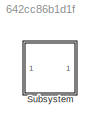
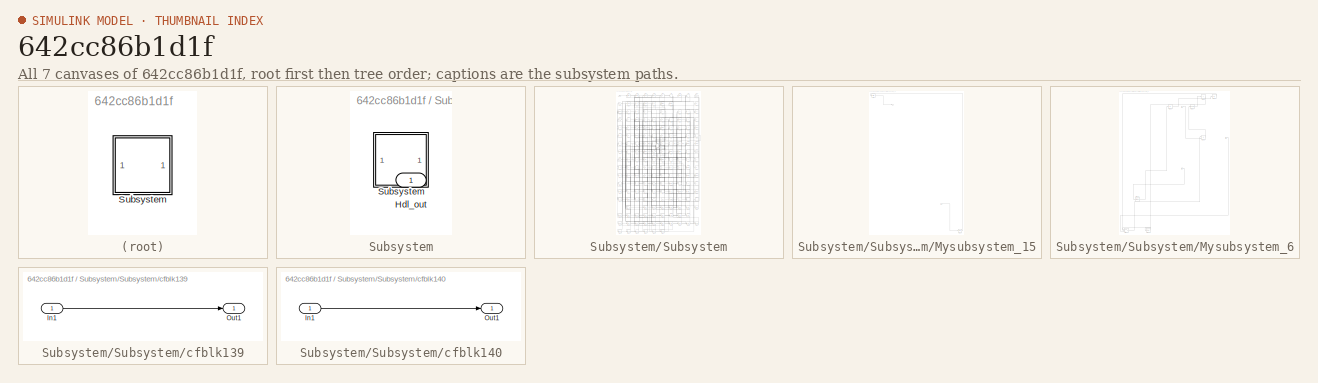
[diagram: thumbnail index - all 7 canvases of the model, root first then tree order]
MODEL slx_642cc86b1d1f
KIND model
CONFIG AbsTol = auto
CONFIG EnableMultiTasking = off
CONFIG FixedStep = auto
CONFIG MaxStep = auto
CONFIG MinStep = auto
CONFIG RelTol = 1e-3
CONFIG SampleTimeConstraint = Unconstrained
CONFIG SolverName = VariableStepAuto
CONFIG StartTime = 0.0
CONFIG StopTime = 10.0
BLOCK [SubSystem] Subsystem
BLOCK [Outport] Subsystem/Hdl_out
  OutDataTypeStr = uint8
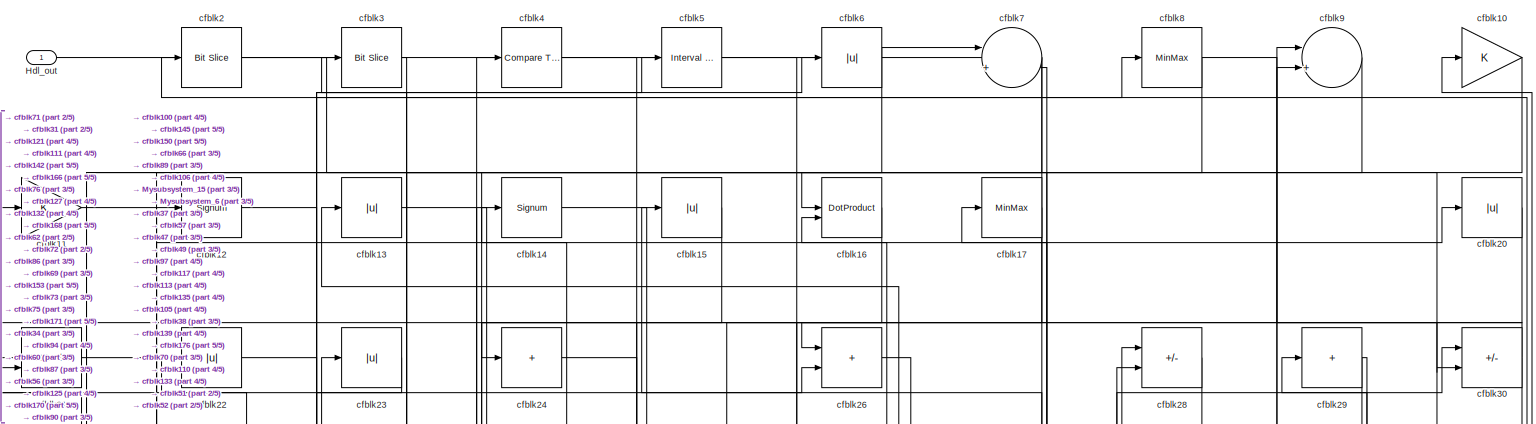
[diagram: Subsystem/Subsystem - part 1/5, full width, top band]
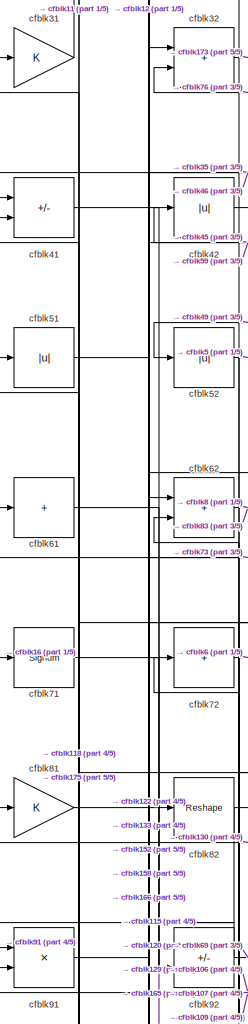
[diagram: Subsystem/Subsystem - part 2/5, middle left region]
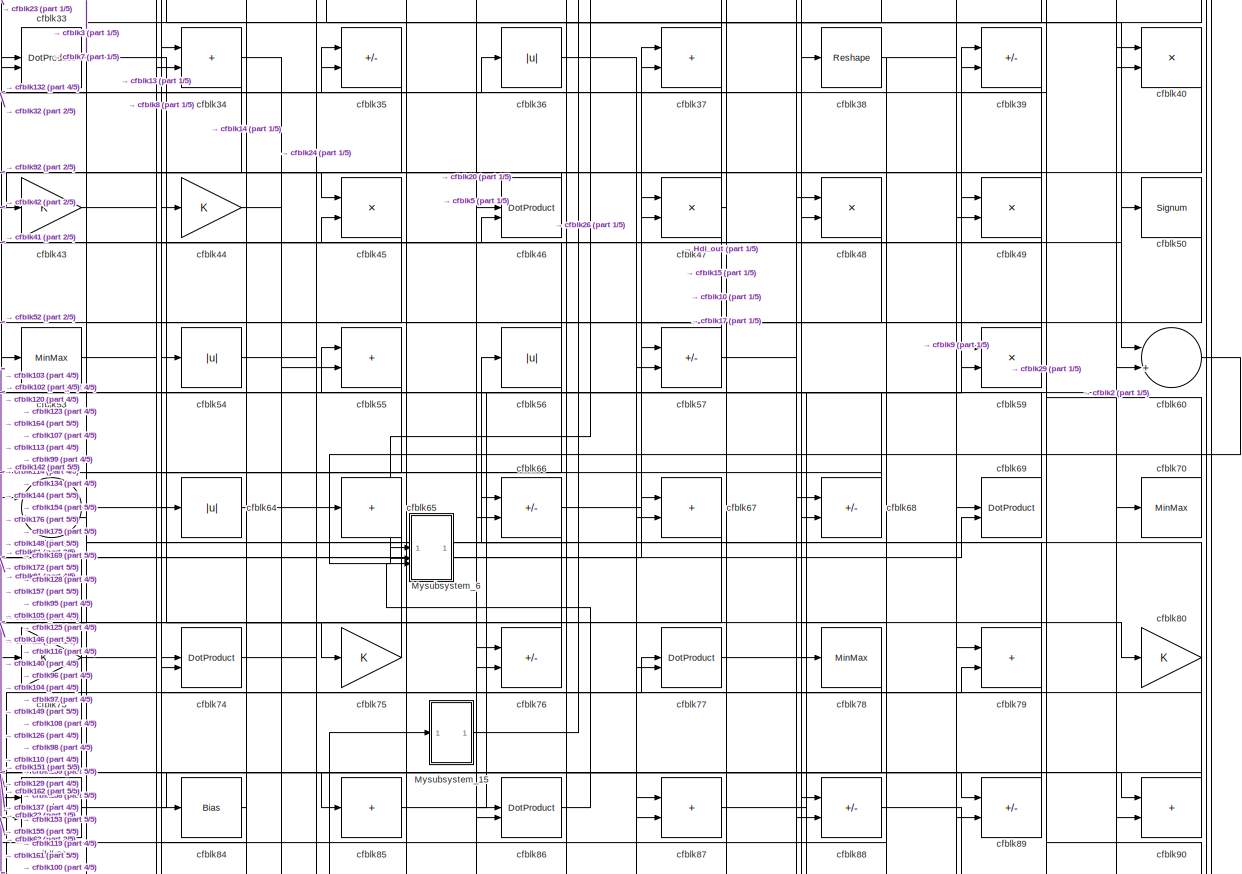
[diagram: Subsystem/Subsystem - part 3/5, full width, middle band]
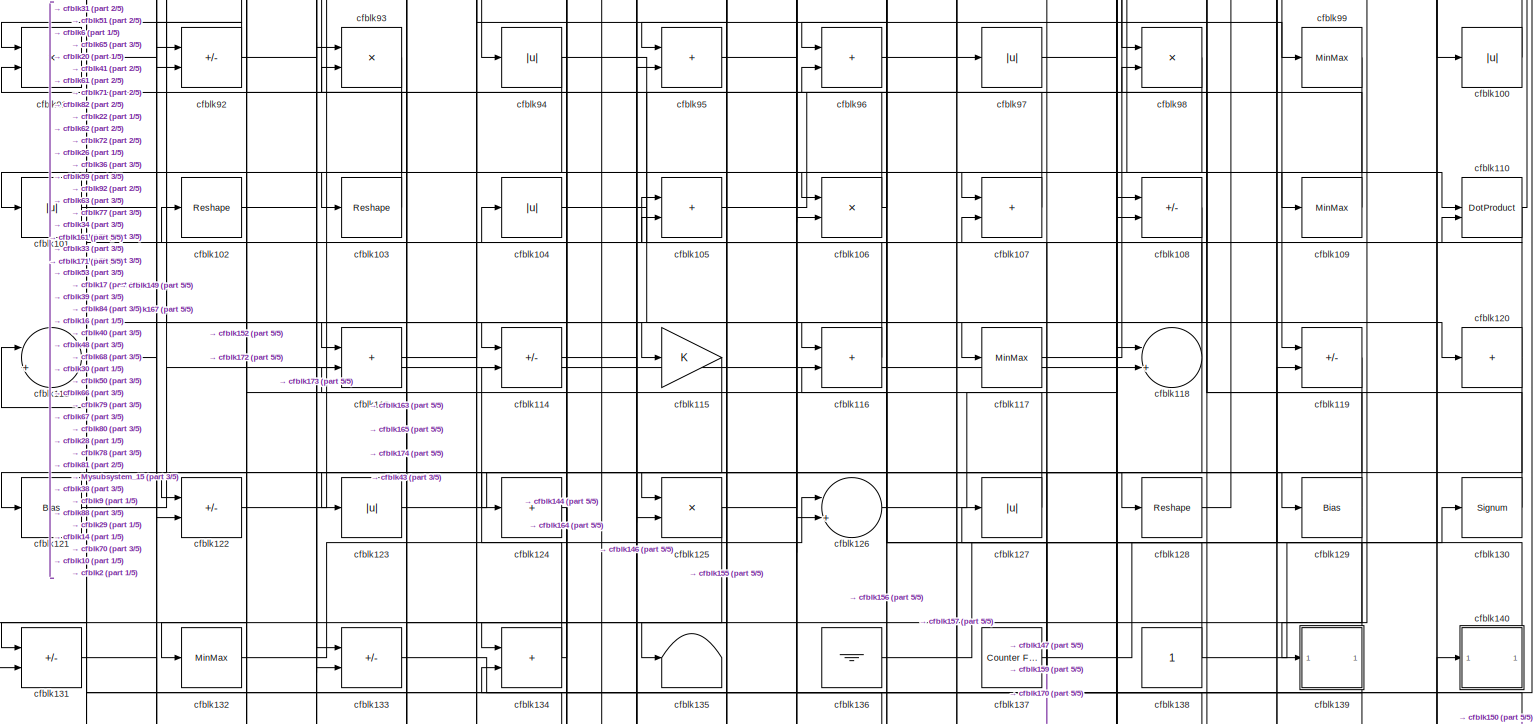
[diagram: Subsystem/Subsystem - part 4/5, full width, middle band]
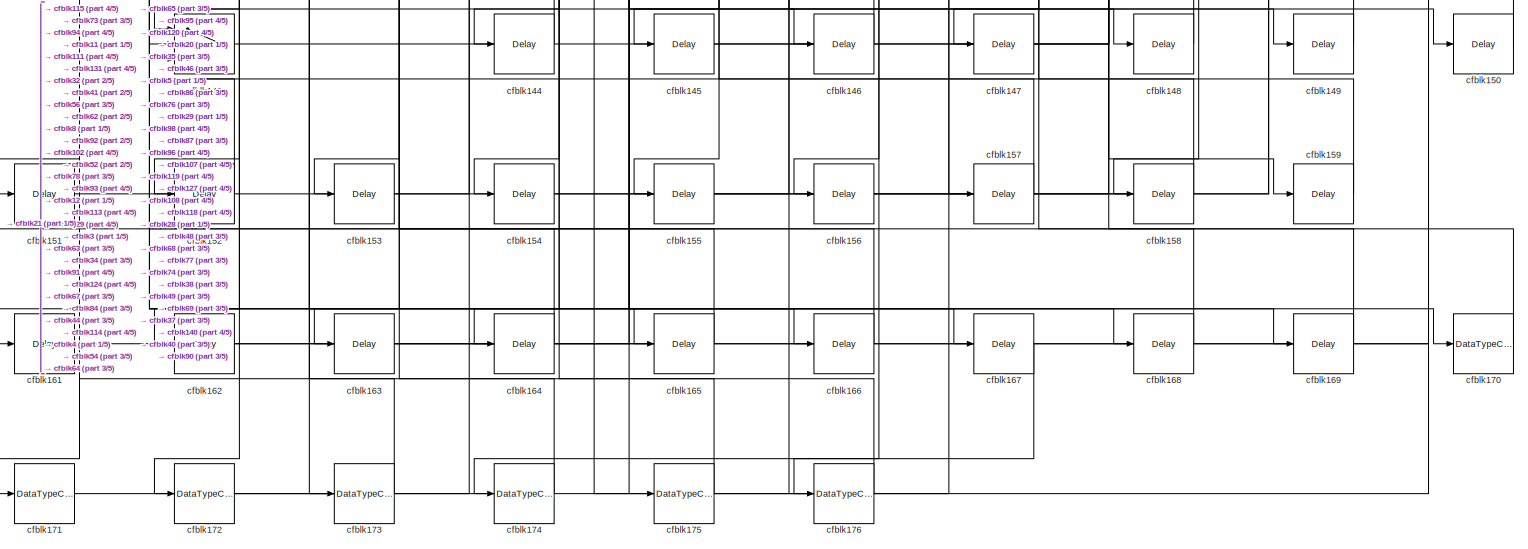
[diagram: Subsystem/Subsystem - part 5/5, full width, bottom band]
BLOCK [SubSystem] Subsystem/Subsystem
BLOCK [Outport] Subsystem/Subsystem/Hdl_out
  OutDataTypeStr = uint8
BLOCK [SubSystem] Subsystem/Subsystem/Mysubsystem_15
  RTWFcnName = Mysubsystem_15
  RTWFcnNameOpts = User specified
  RTWFileNameOpts = Use function name
  RTWSystemCode = Reusable function
  TreatAsAtomicUnit = on
BLOCK [Inport] Subsystem/Subsystem/Mysubsystem_15/In1
BLOCK [Reference] Subsystem/Subsystem/Mysubsystem_15/cfblk1  REF=hdlsllib/Logic and Bit
Operations/Bit Slice
  SourceBlock = hdlsllib/Logic and Bit\nOperations/Bit Slice
  SourceType = Bit Slice
BLOCK [Delay] Subsystem/Subsystem/Mysubsystem_15/cfblk160
  InputPortMap = u0
  SampleTime = 1
BLOCK [Outport] Subsystem/Subsystem/Mysubsystem_15/y
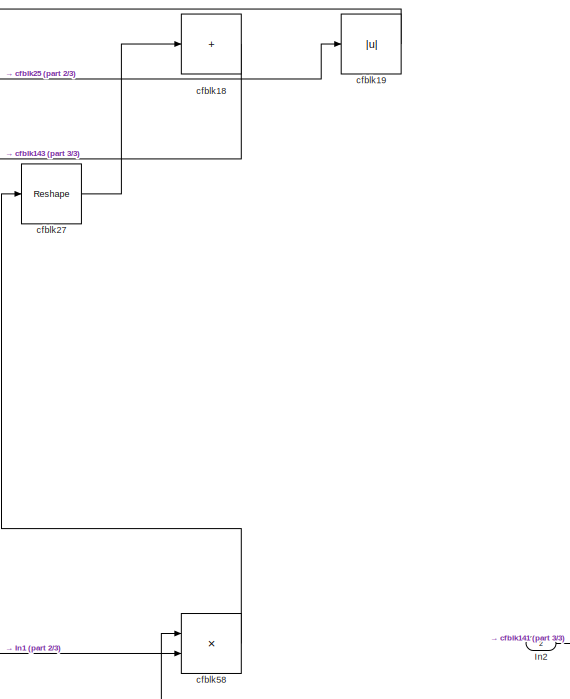
[diagram: Subsystem/Subsystem/Mysubsystem_6 - part 1/3, top right region]
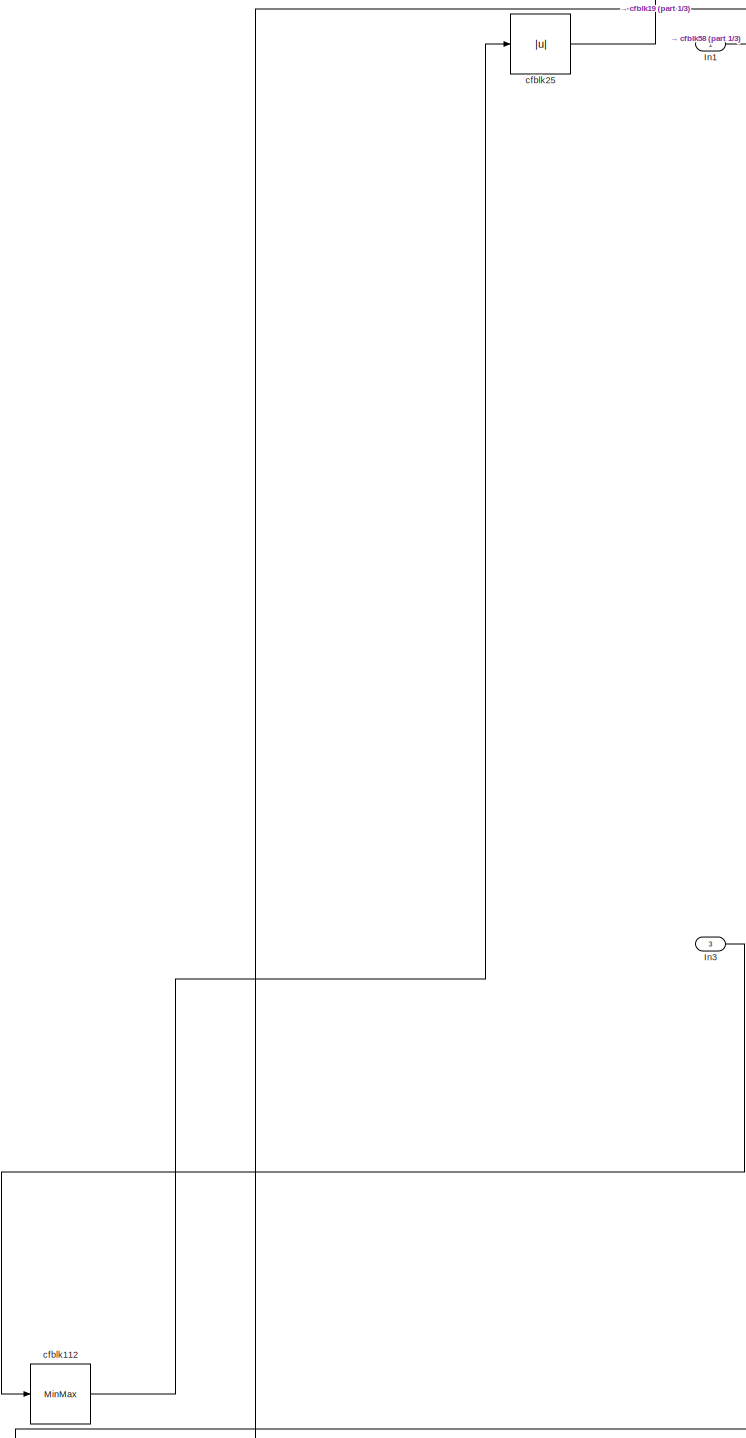
[diagram: Subsystem/Subsystem/Mysubsystem_6 - part 2/3, central region]
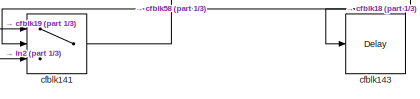
[diagram: Subsystem/Subsystem/Mysubsystem_6 - part 3/3, bottom left region]
BLOCK [SubSystem] Subsystem/Subsystem/Mysubsystem_6
  RTWFcnName = Mysubsystem_6
  RTWFcnNameOpts = User specified
  RTWFileNameOpts = Use function name
  RTWSystemCode = Reusable function
  TreatAsAtomicUnit = on
BLOCK [Inport] Subsystem/Subsystem/Mysubsystem_6/In1
BLOCK [Inport] Subsystem/Subsystem/Mysubsystem_6/In2
  Port = 2
BLOCK [Inport] Subsystem/Subsystem/Mysubsystem_6/In3
  Port = 3
BLOCK [MinMax] Subsystem/Subsystem/Mysubsystem_6/cfblk112
BLOCK [Switch] Subsystem/Subsystem/Mysubsystem_6/cfblk141
  InputSameDT = off
  SaturateOnIntegerOverflow = off
BLOCK [Delay] Subsystem/Subsystem/Mysubsystem_6/cfblk143
  InputPortMap = u0
  SampleTime = 1
BLOCK [Sum] Subsystem/Subsystem/Mysubsystem_6/cfblk18
  IconShape = rectangular
  Inputs = +
BLOCK [Abs] Subsystem/Subsystem/Mysubsystem_6/cfblk19
  SaturateOnIntegerOverflow = off
BLOCK [Abs] Subsystem/Subsystem/Mysubsystem_6/cfblk25
  SaturateOnIntegerOverflow = off
BLOCK [Reshape] Subsystem/Subsystem/Mysubsystem_6/cfblk27
BLOCK [Product] Subsystem/Subsystem/Mysubsystem_6/cfblk58
  Inputs = */
  RndMeth = Zero
  SaturateOnIntegerOverflow = on
BLOCK [Gain] Subsystem/Subsystem/cfblk10
  OutDataTypeStr = uint8
BLOCK [Abs] Subsystem/Subsystem/cfblk100
  OutDataTypeStr = uint8
  SaturateOnIntegerOverflow = off
BLOCK [Abs] Subsystem/Subsystem/cfblk101
  OutDataTypeStr = uint8
  SaturateOnIntegerOverflow = off
BLOCK [Reshape] Subsystem/Subsystem/cfblk102
BLOCK [Reshape] Subsystem/Subsystem/cfblk103
BLOCK [Abs] Subsystem/Subsystem/cfblk104
  OutDataTypeStr = uint8
  SaturateOnIntegerOverflow = off
BLOCK [Sum] Subsystem/Subsystem/cfblk105
  IconShape = rectangular
  OutDataTypeStr = uint8
BLOCK [Product] Subsystem/Subsystem/cfblk106
  Inputs = */
  OutDataTypeStr = uint8
  RndMeth = Zero
  SaturateOnIntegerOverflow = on
BLOCK [Sum] Subsystem/Subsystem/cfblk107
  IconShape = rectangular
  OutDataTypeStr = uint8
BLOCK [Sum] Subsystem/Subsystem/cfblk108
  IconShape = rectangular
  Inputs = +-
  OutDataTypeStr = uint8
BLOCK [MinMax] Subsystem/Subsystem/cfblk109
  OutDataTypeStr = uint8
BLOCK [Gain] Subsystem/Subsystem/cfblk11
  OutDataTypeStr = uint8
BLOCK [DotProduct] Subsystem/Subsystem/cfblk110
  OutDataTypeStr = uint8
BLOCK [Sum] Subsystem/Subsystem/cfblk111
  Inputs = |++
  OutDataTypeStr = uint8
BLOCK [Sum] Subsystem/Subsystem/cfblk113
  IconShape = rectangular
  OutDataTypeStr = uint8
BLOCK [Sum] Subsystem/Subsystem/cfblk114
  IconShape = rectangular
  Inputs = +-
  OutDataTypeStr = uint8
BLOCK [Gain] Subsystem/Subsystem/cfblk115
  OutDataTypeStr = uint8
BLOCK [Sum] Subsystem/Subsystem/cfblk116
  IconShape = rectangular
  OutDataTypeStr = uint8
BLOCK [MinMax] Subsystem/Subsystem/cfblk117
  OutDataTypeStr = uint8
BLOCK [Sum] Subsystem/Subsystem/cfblk118
  Inputs = |++
  OutDataTypeStr = uint8
BLOCK [Sum] Subsystem/Subsystem/cfblk119
  IconShape = rectangular
  Inputs = +-
  OutDataTypeStr = uint8
BLOCK [Signum] Subsystem/Subsystem/cfblk12
BLOCK [Sum] Subsystem/Subsystem/cfblk120
  IconShape = rectangular
  Inputs = +
  OutDataTypeStr = uint8
BLOCK [Bias] Subsystem/Subsystem/cfblk121
  Bias = 0.0
  SaturateOnIntegerOverflow = off
BLOCK [Sum] Subsystem/Subsystem/cfblk122
  IconShape = rectangular
  Inputs = +-
  OutDataTypeStr = uint8
BLOCK [Abs] Subsystem/Subsystem/cfblk123
  OutDataTypeStr = uint8
  SaturateOnIntegerOverflow = off
BLOCK [Sum] Subsystem/Subsystem/cfblk124
  IconShape = rectangular
  Inputs = +
  OutDataTypeStr = uint8
BLOCK [Product] Subsystem/Subsystem/cfblk125
  Inputs = */
  OutDataTypeStr = uint8
  RndMeth = Zero
  SaturateOnIntegerOverflow = on
BLOCK [Sum] Subsystem/Subsystem/cfblk126
  Inputs = |++
  OutDataTypeStr = uint8
BLOCK [Abs] Subsystem/Subsystem/cfblk127
  OutDataTypeStr = uint8
  SaturateOnIntegerOverflow = off
BLOCK [Reshape] Subsystem/Subsystem/cfblk128
BLOCK [Bias] Subsystem/Subsystem/cfblk129
  Bias = 0.0
  SaturateOnIntegerOverflow = off
BLOCK [Abs] Subsystem/Subsystem/cfblk13
  OutDataTypeStr = uint8
  SaturateOnIntegerOverflow = off
BLOCK [Signum] Subsystem/Subsystem/cfblk130
BLOCK [Sum] Subsystem/Subsystem/cfblk131
  IconShape = rectangular
  Inputs = +-
  OutDataTypeStr = uint8
BLOCK [MinMax] Subsystem/Subsystem/cfblk132
  OutDataTypeStr = uint8
BLOCK [Sum] Subsystem/Subsystem/cfblk133
  IconShape = rectangular
  Inputs = +-
  OutDataTypeStr = uint8
BLOCK [Sum] Subsystem/Subsystem/cfblk134
  IconShape = rectangular
  OutDataTypeStr = uint8
BLOCK [Terminator] Subsystem/Subsystem/cfblk135
BLOCK [Ground] Subsystem/Subsystem/cfblk136
BLOCK [Reference] Subsystem/Subsystem/cfblk137  REF=hdlsllib/Sources/Counter
Free-Running
  SourceBlock = hdlsllib/Sources/Counter\nFree-Running
  SourceType = Counter Free-Running
BLOCK [Constant] Subsystem/Subsystem/cfblk138
  OutDataTypeStr = uint8
  SampleTime = -1
BLOCK [SubSystem] Subsystem/Subsystem/cfblk139
  LibrarySourceBlock = hdlsllib/Ports &\nSubsystems/Subsystem
BLOCK [Inport] Subsystem/Subsystem/cfblk139/In1
BLOCK [Outport] Subsystem/Subsystem/cfblk139/Out1
BLOCK [Signum] Subsystem/Subsystem/cfblk14
BLOCK [SubSystem] Subsystem/Subsystem/cfblk140
  LibrarySourceBlock = hdlsllib/Ports &\nSubsystems/Subsystem
BLOCK [Inport] Subsystem/Subsystem/cfblk140/In1
BLOCK [Outport] Subsystem/Subsystem/cfblk140/Out1
BLOCK [Switch] Subsystem/Subsystem/cfblk142
  InputSameDT = off
  OutDataTypeStr = uint8
  SaturateOnIntegerOverflow = off
BLOCK [Delay] Subsystem/Subsystem/cfblk144
  InputPortMap = u0
  SampleTime = 1
BLOCK [Delay] Subsystem/Subsystem/cfblk145
  InputPortMap = u0
  SampleTime = 1
BLOCK [Delay] Subsystem/Subsystem/cfblk146
  InputPortMap = u0
  SampleTime = 1
BLOCK [Delay] Subsystem/Subsystem/cfblk147
  InputPortMap = u0
  SampleTime = 1
BLOCK [Delay] Subsystem/Subsystem/cfblk148
  InputPortMap = u0
  SampleTime = 1
BLOCK [Delay] Subsystem/Subsystem/cfblk149
  InputPortMap = u0
  SampleTime = 1
BLOCK [Abs] Subsystem/Subsystem/cfblk15
  OutDataTypeStr = uint8
  SaturateOnIntegerOverflow = off
BLOCK [Delay] Subsystem/Subsystem/cfblk150
  InputPortMap = u0
  SampleTime = 1
BLOCK [Delay] Subsystem/Subsystem/cfblk151
  InputPortMap = u0
  SampleTime = 1
BLOCK [Delay] Subsystem/Subsystem/cfblk152
  InputPortMap = u0
  SampleTime = 1
BLOCK [Delay] Subsystem/Subsystem/cfblk153
  InputPortMap = u0
  SampleTime = 1
BLOCK [Delay] Subsystem/Subsystem/cfblk154
  InputPortMap = u0
  SampleTime = 1
BLOCK [Delay] Subsystem/Subsystem/cfblk155
  InputPortMap = u0
  SampleTime = 1
BLOCK [Delay] Subsystem/Subsystem/cfblk156
  InputPortMap = u0
  SampleTime = 1
BLOCK [Delay] Subsystem/Subsystem/cfblk157
  InputPortMap = u0
  SampleTime = 1
BLOCK [Delay] Subsystem/Subsystem/cfblk158
  InputPortMap = u0
  SampleTime = 1
BLOCK [Delay] Subsystem/Subsystem/cfblk159
  InputPortMap = u0
  SampleTime = 1
BLOCK [DotProduct] Subsystem/Subsystem/cfblk16
  OutDataTypeStr = uint8
BLOCK [Delay] Subsystem/Subsystem/cfblk161
  InputPortMap = u0
  SampleTime = 1
BLOCK [Delay] Subsystem/Subsystem/cfblk162
  InputPortMap = u0
  SampleTime = 1
BLOCK [Delay] Subsystem/Subsystem/cfblk163
  InputPortMap = u0
  SampleTime = 1
BLOCK [Delay] Subsystem/Subsystem/cfblk164
  InputPortMap = u0
  SampleTime = 1
BLOCK [Delay] Subsystem/Subsystem/cfblk165
  InputPortMap = u0
  SampleTime = 1
BLOCK [Delay] Subsystem/Subsystem/cfblk166
  InputPortMap = u0
  SampleTime = 1
BLOCK [Delay] Subsystem/Subsystem/cfblk167
  InputPortMap = u0
  SampleTime = 1
BLOCK [Delay] Subsystem/Subsystem/cfblk168
  InputPortMap = u0
  SampleTime = 1
BLOCK [Delay] Subsystem/Subsystem/cfblk169
  InputPortMap = u0
  SampleTime = 1
BLOCK [MinMax] Subsystem/Subsystem/cfblk17
  OutDataTypeStr = uint8
BLOCK [DataTypeConversion] Subsystem/Subsystem/cfblk170
  OutDataTypeStr = uint8
  RndMeth = Floor
  SaturateOnIntegerOverflow = off
BLOCK [DataTypeConversion] Subsystem/Subsystem/cfblk171
  OutDataTypeStr = uint8
  RndMeth = Floor
  SaturateOnIntegerOverflow = off
BLOCK [DataTypeConversion] Subsystem/Subsystem/cfblk172
  OutDataTypeStr = uint8
  RndMeth = Floor
  SaturateOnIntegerOverflow = off
BLOCK [DataTypeConversion] Subsystem/Subsystem/cfblk173
  OutDataTypeStr = uint8
  RndMeth = Floor
  SaturateOnIntegerOverflow = off
BLOCK [DataTypeConversion] Subsystem/Subsystem/cfblk174
  OutDataTypeStr = uint8
  RndMeth = Floor
  SaturateOnIntegerOverflow = off
BLOCK [DataTypeConversion] Subsystem/Subsystem/cfblk175
  OutDataTypeStr = uint8
  RndMeth = Floor
  SaturateOnIntegerOverflow = off
BLOCK [DataTypeConversion] Subsystem/Subsystem/cfblk176
  OutDataTypeStr = uint8
  RndMeth = Floor
  SaturateOnIntegerOverflow = off
BLOCK [Reference] Subsystem/Subsystem/cfblk2  REF=hdlsllib/Logic and Bit
Operations/Bit Slice
  SourceBlock = hdlsllib/Logic and Bit\nOperations/Bit Slice
  SourceType = Bit Slice
BLOCK [Abs] Subsystem/Subsystem/cfblk20
  OutDataTypeStr = uint8
  SaturateOnIntegerOverflow = off
BLOCK [DotProduct] Subsystem/Subsystem/cfblk21
  OutDataTypeStr = uint8
BLOCK [Abs] Subsystem/Subsystem/cfblk22
  OutDataTypeStr = uint8
  SaturateOnIntegerOverflow = off
BLOCK [Abs] Subsystem/Subsystem/cfblk23
  OutDataTypeStr = uint8
  SaturateOnIntegerOverflow = off
BLOCK [Sum] Subsystem/Subsystem/cfblk24
  IconShape = rectangular
  Inputs = +
  OutDataTypeStr = uint8
BLOCK [Sum] Subsystem/Subsystem/cfblk26
  IconShape = rectangular
  OutDataTypeStr = uint8
BLOCK [Sum] Subsystem/Subsystem/cfblk28
  IconShape = rectangular
  Inputs = +-
  OutDataTypeStr = uint8
BLOCK [Sum] Subsystem/Subsystem/cfblk29
  IconShape = rectangular
  Inputs = +
  OutDataTypeStr = uint8
BLOCK [Reference] Subsystem/Subsystem/cfblk3  REF=hdlsllib/Logic and Bit
Operations/Bit Slice
  SourceBlock = hdlsllib/Logic and Bit\nOperations/Bit Slice
  SourceType = Bit Slice
BLOCK [Sum] Subsystem/Subsystem/cfblk30
  IconShape = rectangular
  Inputs = +-
  OutDataTypeStr = uint8
BLOCK [Gain] Subsystem/Subsystem/cfblk31
  OutDataTypeStr = uint8
BLOCK [Sum] Subsystem/Subsystem/cfblk32
  IconShape = rectangular
  OutDataTypeStr = uint8
BLOCK [DotProduct] Subsystem/Subsystem/cfblk33
  OutDataTypeStr = uint8
BLOCK [Sum] Subsystem/Subsystem/cfblk34
  IconShape = rectangular
  OutDataTypeStr = uint8
BLOCK [Sum] Subsystem/Subsystem/cfblk35
  IconShape = rectangular
  Inputs = +-
  OutDataTypeStr = uint8
BLOCK [Abs] Subsystem/Subsystem/cfblk36
  OutDataTypeStr = uint8
  SaturateOnIntegerOverflow = off
BLOCK [Sum] Subsystem/Subsystem/cfblk37
  IconShape = rectangular
  OutDataTypeStr = uint8
BLOCK [Reshape] Subsystem/Subsystem/cfblk38
BLOCK [Sum] Subsystem/Subsystem/cfblk39
  IconShape = rectangular
  Inputs = +-
  OutDataTypeStr = uint8
BLOCK [Reference] Subsystem/Subsystem/cfblk4  REF=hdlsllib/Logic and Bit
Operations/Compare
To Constant
  SourceBlock = hdlsllib/Logic and Bit\nOperations/Compare\nTo Constant
  SourceType = Compare To Constant
BLOCK [Product] Subsystem/Subsystem/cfblk40
  Inputs = */
  OutDataTypeStr = uint8
  RndMeth = Zero
  SaturateOnIntegerOverflow = on
BLOCK [Sum] Subsystem/Subsystem/cfblk41
  IconShape = rectangular
  Inputs = +-
  OutDataTypeStr = uint8
BLOCK [Abs] Subsystem/Subsystem/cfblk42
  OutDataTypeStr = uint8
  SaturateOnIntegerOverflow = off
BLOCK [Gain] Subsystem/Subsystem/cfblk43
  OutDataTypeStr = uint8
BLOCK [Gain] Subsystem/Subsystem/cfblk44
  OutDataTypeStr = uint8
BLOCK [Product] Subsystem/Subsystem/cfblk45
  Inputs = */
  OutDataTypeStr = uint8
  RndMeth = Zero
  SaturateOnIntegerOverflow = on
BLOCK [DotProduct] Subsystem/Subsystem/cfblk46
  OutDataTypeStr = uint8
BLOCK [Product] Subsystem/Subsystem/cfblk47
  Inputs = */
  OutDataTypeStr = uint8
  RndMeth = Zero
  SaturateOnIntegerOverflow = on
BLOCK [Product] Subsystem/Subsystem/cfblk48
  Inputs = */
  OutDataTypeStr = uint8
  RndMeth = Zero
  SaturateOnIntegerOverflow = on
BLOCK [Product] Subsystem/Subsystem/cfblk49
  Inputs = */
  OutDataTypeStr = uint8
  RndMeth = Zero
  SaturateOnIntegerOverflow = on
BLOCK [Reference] Subsystem/Subsystem/cfblk5  REF=hdlsllib/Logic and Bit
Operations/Interval Test
  SourceBlock = hdlsllib/Logic and Bit\nOperations/Interval Test
  SourceType = Interval Test
BLOCK [Signum] Subsystem/Subsystem/cfblk50
BLOCK [Abs] Subsystem/Subsystem/cfblk51
  OutDataTypeStr = uint8
  SaturateOnIntegerOverflow = off
BLOCK [Abs] Subsystem/Subsystem/cfblk52
  OutDataTypeStr = uint8
  SaturateOnIntegerOverflow = off
BLOCK [MinMax] Subsystem/Subsystem/cfblk53
  OutDataTypeStr = uint8
BLOCK [Abs] Subsystem/Subsystem/cfblk54
  OutDataTypeStr = uint8
  SaturateOnIntegerOverflow = off
BLOCK [Sum] Subsystem/Subsystem/cfblk55
  IconShape = rectangular
  OutDataTypeStr = uint8
BLOCK [Abs] Subsystem/Subsystem/cfblk56
  OutDataTypeStr = uint8
  SaturateOnIntegerOverflow = off
BLOCK [Sum] Subsystem/Subsystem/cfblk57
  IconShape = rectangular
  Inputs = +-
  OutDataTypeStr = uint8
BLOCK [Product] Subsystem/Subsystem/cfblk59
  Inputs = */
  OutDataTypeStr = uint8
  RndMeth = Zero
  SaturateOnIntegerOverflow = on
BLOCK [Abs] Subsystem/Subsystem/cfblk6
  OutDataTypeStr = uint8
  SaturateOnIntegerOverflow = off
BLOCK [Sum] Subsystem/Subsystem/cfblk60
  Inputs = |++
  OutDataTypeStr = uint8
BLOCK [Sum] Subsystem/Subsystem/cfblk61
  IconShape = rectangular
  Inputs = +
  OutDataTypeStr = uint8
BLOCK [Sum] Subsystem/Subsystem/cfblk62
  IconShape = rectangular
  OutDataTypeStr = uint8
BLOCK [Sum] Subsystem/Subsystem/cfblk63
  Inputs = |++
  OutDataTypeStr = uint8
BLOCK [Abs] Subsystem/Subsystem/cfblk64
  OutDataTypeStr = uint8
  SaturateOnIntegerOverflow = off
BLOCK [Sum] Subsystem/Subsystem/cfblk65
  IconShape = rectangular
  Inputs = +
  OutDataTypeStr = uint8
BLOCK [Sum] Subsystem/Subsystem/cfblk66
  IconShape = rectangular
  Inputs = +-
  OutDataTypeStr = uint8
BLOCK [Sum] Subsystem/Subsystem/cfblk67
  IconShape = rectangular
  OutDataTypeStr = uint8
BLOCK [Sum] Subsystem/Subsystem/cfblk68
  IconShape = rectangular
  Inputs = +-
  OutDataTypeStr = uint8
BLOCK [DotProduct] Subsystem/Subsystem/cfblk69
  OutDataTypeStr = uint8
BLOCK [Sum] Subsystem/Subsystem/cfblk7
  Inputs = |++
  OutDataTypeStr = uint8
BLOCK [MinMax] Subsystem/Subsystem/cfblk70
  OutDataTypeStr = uint8
BLOCK [Signum] Subsystem/Subsystem/cfblk71
BLOCK [Sum] Subsystem/Subsystem/cfblk72
  IconShape = rectangular
  Inputs = +
  OutDataTypeStr = uint8
BLOCK [Gain] Subsystem/Subsystem/cfblk73
  OutDataTypeStr = uint8
BLOCK [DotProduct] Subsystem/Subsystem/cfblk74
  OutDataTypeStr = uint8
BLOCK [Gain] Subsystem/Subsystem/cfblk75
  OutDataTypeStr = uint8
BLOCK [Sum] Subsystem/Subsystem/cfblk76
  IconShape = rectangular
  Inputs = +-
  OutDataTypeStr = uint8
BLOCK [DotProduct] Subsystem/Subsystem/cfblk77
  OutDataTypeStr = uint8
BLOCK [MinMax] Subsystem/Subsystem/cfblk78
  OutDataTypeStr = uint8
BLOCK [Sum] Subsystem/Subsystem/cfblk79
  IconShape = rectangular
  OutDataTypeStr = uint8
BLOCK [MinMax] Subsystem/Subsystem/cfblk8
  OutDataTypeStr = uint8
BLOCK [Gain] Subsystem/Subsystem/cfblk80
  OutDataTypeStr = uint8
BLOCK [Gain] Subsystem/Subsystem/cfblk81
  OutDataTypeStr = uint8
BLOCK [Reshape] Subsystem/Subsystem/cfblk82
BLOCK [Sum] Subsystem/Subsystem/cfblk83
  IconShape = rectangular
  Inputs = +-
  OutDataTypeStr = uint8
BLOCK [Bias] Subsystem/Subsystem/cfblk84
  Bias = 0.0
  SaturateOnIntegerOverflow = off
BLOCK [Sum] Subsystem/Subsystem/cfblk85
  IconShape = rectangular
  Inputs = +
  OutDataTypeStr = uint8
BLOCK [DotProduct] Subsystem/Subsystem/cfblk86
  OutDataTypeStr = uint8
BLOCK [Sum] Subsystem/Subsystem/cfblk87
  IconShape = rectangular
  OutDataTypeStr = uint8
BLOCK [Sum] Subsystem/Subsystem/cfblk88
  IconShape = rectangular
  Inputs = +-
  OutDataTypeStr = uint8
BLOCK [Sum] Subsystem/Subsystem/cfblk89
  IconShape = rectangular
  Inputs = +-
  OutDataTypeStr = uint8
BLOCK [Sum] Subsystem/Subsystem/cfblk9
  Inputs = |++
  OutDataTypeStr = uint8
BLOCK [Sum] Subsystem/Subsystem/cfblk90
  IconShape = rectangular
  OutDataTypeStr = uint8
BLOCK [Product] Subsystem/Subsystem/cfblk91
  Inputs = */
  OutDataTypeStr = uint8
  RndMeth = Zero
  SaturateOnIntegerOverflow = on
BLOCK [Sum] Subsystem/Subsystem/cfblk92
  IconShape = rectangular
  Inputs = +-
  OutDataTypeStr = uint8
BLOCK [Product] Subsystem/Subsystem/cfblk93
  Inputs = */
  OutDataTypeStr = uint8
  RndMeth = Zero
  SaturateOnIntegerOverflow = on
BLOCK [Abs] Subsystem/Subsystem/cfblk94
  OutDataTypeStr = uint8
  SaturateOnIntegerOverflow = off
BLOCK [Sum] Subsystem/Subsystem/cfblk95
  IconShape = rectangular
  OutDataTypeStr = uint8
BLOCK [Sum] Subsystem/Subsystem/cfblk96
  IconShape = rectangular
  OutDataTypeStr = uint8
BLOCK [Abs] Subsystem/Subsystem/cfblk97
  OutDataTypeStr = uint8
  SaturateOnIntegerOverflow = off
BLOCK [Product] Subsystem/Subsystem/cfblk98
  Inputs = */
  OutDataTypeStr = uint8
  RndMeth = Zero
  SaturateOnIntegerOverflow = on
BLOCK [MinMax] Subsystem/Subsystem/cfblk99
  OutDataTypeStr = uint8
LINE Subsystem/Subsystem/Mysubsystem_15/In1:1 -> Subsystem/Subsystem/Mysubsystem_15/cfblk160:1
LINE Subsystem/Subsystem/Mysubsystem_15/cfblk160:1 -> Subsystem/Subsystem/Mysubsystem_15/cfblk1:1
LINE Subsystem/Subsystem/Mysubsystem_15/cfblk1:1 -> Subsystem/Subsystem/Mysubsystem_15/y:1
LINE Subsystem/Subsystem/Mysubsystem_15:1 -> Subsystem/Subsystem/cfblk13:1
LINE Subsystem/Subsystem/Mysubsystem_6/In1:1 -> Subsystem/Subsystem/Mysubsystem_6/cfblk58:2
LINE Subsystem/Subsystem/Mysubsystem_6/In2:1 -> Subsystem/Subsystem/Mysubsystem_6/cfblk141:3
LINE Subsystem/Subsystem/Mysubsystem_6/In3:1 -> Subsystem/Subsystem/Mysubsystem_6/cfblk112:1
LINE Subsystem/Subsystem/Mysubsystem_6/cfblk112:1 -> Subsystem/Subsystem/Mysubsystem_6/cfblk25:1
LINE Subsystem/Subsystem/Mysubsystem_6/cfblk141:1 -> Subsystem/Subsystem/Mysubsystem_6/cfblk58:1
LINE Subsystem/Subsystem/Mysubsystem_6/cfblk143:1 -> Subsystem/Subsystem/Mysubsystem_6/cfblk141:2
LINE Subsystem/Subsystem/Mysubsystem_6/cfblk18:1 -> Subsystem/Subsystem/Mysubsystem_6/cfblk143:1
LINE Subsystem/Subsystem/Mysubsystem_6/cfblk19:1 -> Subsystem/Subsystem/Mysubsystem_6/cfblk141:1
LINE Subsystem/Subsystem/Mysubsystem_6/cfblk25:1 -> Subsystem/Subsystem/Mysubsystem_6/cfblk19:1
LINE Subsystem/Subsystem/Mysubsystem_6/cfblk27:1 -> Subsystem/Subsystem/Mysubsystem_6/cfblk18:1
LINE Subsystem/Subsystem/Mysubsystem_6/cfblk58:1 -> Subsystem/Subsystem/Mysubsystem_6/cfblk27:1
LINE Subsystem/Subsystem/cfblk100:1 -> Subsystem/Subsystem/cfblk39:2
LINE Subsystem/Subsystem/cfblk101:1 -> Subsystem/Subsystem/cfblk109:1
NET Subsystem/Subsystem/cfblk102:1 -> Subsystem/Subsystem/cfblk122:1, Subsystem/Subsystem/cfblk152:1, Subsystem/Subsystem/cfblk59:2
LINE Subsystem/Subsystem/cfblk103:1 -> Subsystem/Subsystem/cfblk63:1
NET Subsystem/Subsystem/cfblk104:1 -> Subsystem/Subsystem/cfblk110:2, Subsystem/Subsystem/cfblk67:2
NET Subsystem/Subsystem/cfblk105:1 -> Subsystem/Subsystem/cfblk38:1, Subsystem/Subsystem/cfblk9:1
NET Subsystem/Subsystem/cfblk106:1 -> Subsystem/Subsystem/cfblk16:2, Subsystem/Subsystem/cfblk31:1
LINE Subsystem/Subsystem/cfblk107:1 -> Subsystem/Subsystem/cfblk62:2
NET Subsystem/Subsystem/cfblk108:1 -> Subsystem/Subsystem/cfblk117:1, Subsystem/Subsystem/cfblk131:1
LINE Subsystem/Subsystem/cfblk109:1 -> Subsystem/Subsystem/cfblk72:1
NET Subsystem/Subsystem/cfblk10:1 -> Subsystem/Subsystem/cfblk111:2, Subsystem/Subsystem/cfblk57:1
NET Subsystem/Subsystem/cfblk110:1 -> Subsystem/Subsystem/cfblk105:2, Subsystem/Subsystem/cfblk2:1
NET Subsystem/Subsystem/cfblk111:1 -> Subsystem/Subsystem/cfblk167:1, Subsystem/Subsystem/cfblk20:1
LINE Subsystem/Subsystem/cfblk113:1 -> Subsystem/Subsystem/cfblk35:1
LINE Subsystem/Subsystem/cfblk114:1 -> Subsystem/Subsystem/cfblk146:1
LINE Subsystem/Subsystem/cfblk115:1 -> Subsystem/Subsystem/cfblk161:1
LINE Subsystem/Subsystem/cfblk116:1 -> Subsystem/Subsystem/cfblk102:1
LINE Subsystem/Subsystem/cfblk117:1 -> Subsystem/Subsystem/cfblk28:1
NET Subsystem/Subsystem/cfblk118:1 -> Subsystem/Subsystem/cfblk133:2, Subsystem/Subsystem/cfblk51:1
LINE Subsystem/Subsystem/cfblk119:1 -> Subsystem/Subsystem/cfblk147:1
LINE Subsystem/Subsystem/cfblk11:1 -> Subsystem/Subsystem/cfblk166:1
NET Subsystem/Subsystem/cfblk120:1 -> Subsystem/Subsystem/cfblk155:1, Subsystem/Subsystem/cfblk33:1, Subsystem/Subsystem/cfblk98:2
LINE Subsystem/Subsystem/cfblk121:1 -> Subsystem/Subsystem/cfblk118:2
LINE Subsystem/Subsystem/cfblk122:1 -> Subsystem/Subsystem/cfblk77:1
LINE Subsystem/Subsystem/cfblk123:1 -> Subsystem/Subsystem/cfblk128:1
LINE Subsystem/Subsystem/cfblk124:1 -> Subsystem/Subsystem/cfblk164:1
NET Subsystem/Subsystem/cfblk125:1 -> Subsystem/Subsystem/cfblk131:2, Subsystem/Subsystem/cfblk59:1
LINE Subsystem/Subsystem/cfblk126:1 -> Subsystem/Subsystem/cfblk79:2
LINE Subsystem/Subsystem/cfblk127:1 -> Subsystem/Subsystem/cfblk22:1
LINE Subsystem/Subsystem/cfblk128:1 -> Subsystem/Subsystem/Mysubsystem_15:1
NET Subsystem/Subsystem/cfblk129:1 -> Subsystem/Subsystem/cfblk124:1, Subsystem/Subsystem/cfblk163:1, Subsystem/Subsystem/cfblk43:1
LINE Subsystem/Subsystem/cfblk12:1 -> Subsystem/Subsystem/cfblk168:1
NET Subsystem/Subsystem/cfblk130:1 -> Subsystem/Subsystem/cfblk105:1, Subsystem/Subsystem/cfblk81:1
LINE Subsystem/Subsystem/cfblk131:1 -> Subsystem/Subsystem/cfblk149:1
NET Subsystem/Subsystem/cfblk132:1 -> Subsystem/Subsystem/cfblk126:1, Subsystem/Subsystem/cfblk26:2, Subsystem/Subsystem/cfblk36:1
LINE Subsystem/Subsystem/cfblk133:1 -> Subsystem/Subsystem/cfblk10:1
NET Subsystem/Subsystem/cfblk134:1 -> Subsystem/Subsystem/cfblk114:2, Subsystem/Subsystem/cfblk84:1
LINE Subsystem/Subsystem/cfblk136:1 -> Subsystem/Subsystem/cfblk119:2
NET Subsystem/Subsystem/cfblk137:1 -> Subsystem/Subsystem/cfblk70:1, Subsystem/Subsystem/cfblk79:1
NET Subsystem/Subsystem/cfblk138:1 -> Subsystem/Subsystem/cfblk104:1, Subsystem/Subsystem/cfblk130:1
LINE Subsystem/Subsystem/cfblk139/In1:1 -> Subsystem/Subsystem/cfblk139/Out1:1
NET Subsystem/Subsystem/cfblk139:1 -> Subsystem/Subsystem/cfblk116:2, Subsystem/Subsystem/cfblk134:2
NET Subsystem/Subsystem/cfblk13:1 -> Subsystem/Subsystem/cfblk60:1, Subsystem/Subsystem/cfblk87:2
LINE Subsystem/Subsystem/cfblk140/In1:1 -> Subsystem/Subsystem/cfblk140/Out1:1
LINE Subsystem/Subsystem/cfblk140:1 -> Subsystem/Subsystem/cfblk66:1
LINE Subsystem/Subsystem/cfblk142:1 -> Subsystem/Subsystem/cfblk48:1
LINE Subsystem/Subsystem/cfblk144:1 -> Subsystem/Subsystem/cfblk91:2
LINE Subsystem/Subsystem/cfblk145:1 -> Subsystem/Subsystem/cfblk28:2
LINE Subsystem/Subsystem/cfblk146:1 -> Subsystem/Subsystem/cfblk76:1
LINE Subsystem/Subsystem/cfblk147:1 -> Subsystem/Subsystem/cfblk108:1
LINE Subsystem/Subsystem/cfblk148:1 -> Subsystem/Subsystem/cfblk74:2
LINE Subsystem/Subsystem/cfblk149:1 -> Subsystem/Subsystem/cfblk37:2
LINE Subsystem/Subsystem/cfblk14:1 -> Subsystem/Subsystem/cfblk100:1
LINE Subsystem/Subsystem/cfblk150:1 -> Subsystem/Subsystem/cfblk111:1
LINE Subsystem/Subsystem/cfblk151:1 -> Subsystem/Subsystem/cfblk34:2
LINE Subsystem/Subsystem/cfblk152:1 -> Subsystem/Subsystem/cfblk62:1
LINE Subsystem/Subsystem/cfblk153:1 -> Subsystem/Subsystem/cfblk49:2
LINE Subsystem/Subsystem/cfblk154:1 -> Subsystem/Subsystem/cfblk46:1
LINE Subsystem/Subsystem/cfblk155:1 -> Subsystem/Subsystem/cfblk69:1
LINE Subsystem/Subsystem/cfblk156:1 -> Subsystem/Subsystem/cfblk118:1
LINE Subsystem/Subsystem/cfblk157:1 -> Subsystem/Subsystem/cfblk35:2
LINE Subsystem/Subsystem/cfblk158:1 -> Subsystem/Subsystem/cfblk32:1
LINE Subsystem/Subsystem/cfblk159:1 -> Subsystem/Subsystem/cfblk107:2
LINE Subsystem/Subsystem/cfblk15:1 -> Subsystem/Subsystem/cfblk24:1
LINE Subsystem/Subsystem/cfblk161:1 -> Subsystem/Subsystem/cfblk40:2
LINE Subsystem/Subsystem/cfblk162:1 -> Subsystem/Subsystem/cfblk90:2
LINE Subsystem/Subsystem/cfblk163:1 -> Subsystem/Subsystem/cfblk95:2
LINE Subsystem/Subsystem/cfblk164:1 -> Subsystem/Subsystem/cfblk63:2
LINE Subsystem/Subsystem/cfblk165:1 -> Subsystem/Subsystem/cfblk113:2
LINE Subsystem/Subsystem/cfblk166:1 -> Subsystem/Subsystem/cfblk92:1
LINE Subsystem/Subsystem/cfblk167:1 -> Subsystem/Subsystem/cfblk174:1
LINE Subsystem/Subsystem/cfblk168:1 -> Subsystem/Subsystem/cfblk21:1
LINE Subsystem/Subsystem/cfblk169:1 -> Subsystem/Subsystem/cfblk68:1
NET Subsystem/Subsystem/cfblk16:1 -> Subsystem/Subsystem/cfblk125:2, Subsystem/Subsystem/cfblk71:1
LINE Subsystem/Subsystem/cfblk170:1 -> Subsystem/Subsystem/cfblk127:1
LINE Subsystem/Subsystem/cfblk171:1 -> Subsystem/Subsystem/cfblk4:1
NET Subsystem/Subsystem/cfblk172:1 -> Subsystem/Subsystem/cfblk140:1, Subsystem/Subsystem/cfblk65:1, Subsystem/Subsystem/cfblk86:1
LINE Subsystem/Subsystem/cfblk173:1 -> Subsystem/Subsystem/cfblk93:1
LINE Subsystem/Subsystem/cfblk174:1 -> Subsystem/Subsystem/cfblk93:2
NET Subsystem/Subsystem/cfblk175:1 -> Subsystem/Subsystem/cfblk41:2, Subsystem/Subsystem/cfblk77:2, Subsystem/Subsystem/cfblk87:1
LINE Subsystem/Subsystem/cfblk176:1 -> Subsystem/Subsystem/cfblk44:1
LINE Subsystem/Subsystem/cfblk17:1 -> Subsystem/Subsystem/cfblk94:1
NET Subsystem/Subsystem/cfblk20:1 -> Subsystem/Subsystem/cfblk145:1, Subsystem/Subsystem/cfblk66:2
LINE Subsystem/Subsystem/cfblk21:1 -> Subsystem/Subsystem/cfblk76:2
LINE Subsystem/Subsystem/cfblk22:1 -> Subsystem/Subsystem/cfblk86:2
LINE Subsystem/Subsystem/cfblk23:1 -> Subsystem/Subsystem/cfblk21:2
LINE Subsystem/Subsystem/cfblk24:1 -> Subsystem/Subsystem/cfblk90:1
LINE Subsystem/Subsystem/cfblk26:1 -> Subsystem/Subsystem/Mysubsystem_6:1
NET Subsystem/Subsystem/cfblk28:1 -> Subsystem/Subsystem/cfblk113:1, Subsystem/Subsystem/cfblk135:1
NET Subsystem/Subsystem/cfblk29:1 -> Subsystem/Subsystem/cfblk139:1, Subsystem/Subsystem/cfblk176:1
LINE Subsystem/Subsystem/cfblk2:1 -> Subsystem/Subsystem/cfblk60:2
NET Subsystem/Subsystem/cfblk30:1 -> Subsystem/Subsystem/cfblk106:1, Subsystem/Subsystem/cfblk106:2, Subsystem/Subsystem/cfblk26:1
LINE Subsystem/Subsystem/cfblk31:1 -> Subsystem/Subsystem/cfblk11:1
LINE Subsystem/Subsystem/cfblk32:1 -> Subsystem/Subsystem/cfblk173:1
NET Subsystem/Subsystem/cfblk33:1 -> Subsystem/Subsystem/cfblk75:1, Subsystem/Subsystem/cfblk99:1
NET Subsystem/Subsystem/cfblk34:1 -> Subsystem/Subsystem/cfblk103:1, Subsystem/Subsystem/cfblk55:2
LINE Subsystem/Subsystem/cfblk35:1 -> Subsystem/Subsystem/cfblk92:2
LINE Subsystem/Subsystem/cfblk36:1 -> Subsystem/Subsystem/cfblk97:1
LINE Subsystem/Subsystem/cfblk37:1 -> Subsystem/Subsystem/cfblk15:1
NET Subsystem/Subsystem/cfblk38:1 -> Subsystem/Subsystem/cfblk158:1, Subsystem/Subsystem/cfblk9:2
NET Subsystem/Subsystem/cfblk39:1 -> Subsystem/Subsystem/cfblk114:1, Subsystem/Subsystem/cfblk88:2
LINE Subsystem/Subsystem/cfblk3:1 -> Subsystem/Subsystem/cfblk153:1
LINE Subsystem/Subsystem/cfblk40:1 -> Subsystem/Subsystem/cfblk95:1
NET Subsystem/Subsystem/cfblk41:1 -> Subsystem/Subsystem/cfblk129:1, Subsystem/Subsystem/cfblk165:1, Subsystem/Subsystem/cfblk45:2
LINE Subsystem/Subsystem/cfblk42:1 -> Subsystem/Subsystem/cfblk45:1
LINE Subsystem/Subsystem/cfblk43:1 -> Subsystem/Subsystem/cfblk49:1
LINE Subsystem/Subsystem/cfblk44:1 -> Subsystem/Subsystem/cfblk175:1
LINE Subsystem/Subsystem/cfblk45:1 -> Subsystem/Subsystem/cfblk83:1
LINE Subsystem/Subsystem/cfblk46:1 -> Subsystem/Subsystem/cfblk41:1
NET Subsystem/Subsystem/cfblk47:1 -> Subsystem/Subsystem/cfblk17:1, Subsystem/Subsystem/cfblk33:2
LINE Subsystem/Subsystem/cfblk48:1 -> Subsystem/Subsystem/cfblk125:1
NET Subsystem/Subsystem/cfblk49:1 -> Subsystem/Subsystem/cfblk48:2, Subsystem/Subsystem/cfblk52:1, Subsystem/Subsystem/cfblk57:2, Subsystem/Subsystem/cfblk7:2
LINE Subsystem/Subsystem/cfblk4:1 -> Subsystem/Subsystem/cfblk170:1
NET Subsystem/Subsystem/cfblk50:1 -> Subsystem/Subsystem/cfblk78:1, Subsystem/Subsystem/cfblk96:1
LINE Subsystem/Subsystem/cfblk51:1 -> Subsystem/Subsystem/cfblk12:1
NET Subsystem/Subsystem/cfblk52:1 -> Subsystem/Subsystem/cfblk142:1, Subsystem/Subsystem/cfblk5:1
LINE Subsystem/Subsystem/cfblk53:1 -> Subsystem/Subsystem/cfblk107:1
LINE Subsystem/Subsystem/cfblk54:1 -> Subsystem/Subsystem/cfblk148:1
LINE Subsystem/Subsystem/cfblk55:1 -> Subsystem/Subsystem/cfblk123:1
NET Subsystem/Subsystem/cfblk56:1 -> Subsystem/Subsystem/cfblk142:2, Subsystem/Subsystem/cfblk14:1
NET Subsystem/Subsystem/cfblk57:1 -> Subsystem/Subsystem/Hdl_out:1, Subsystem/Subsystem/cfblk50:1
LINE Subsystem/Subsystem/cfblk59:1 -> Subsystem/Subsystem/cfblk42:1
NET Subsystem/Subsystem/cfblk5:1 -> Subsystem/Subsystem/cfblk150:1, Subsystem/Subsystem/cfblk89:2
LINE Subsystem/Subsystem/cfblk60:1 -> Subsystem/Subsystem/Mysubsystem_6:2
LINE Subsystem/Subsystem/cfblk61:1 -> Subsystem/Subsystem/cfblk115:1
NET Subsystem/Subsystem/cfblk62:1 -> Subsystem/Subsystem/cfblk83:2, Subsystem/Subsystem/cfblk8:1
LINE Subsystem/Subsystem/cfblk63:1 -> Subsystem/Subsystem/cfblk80:1
LINE Subsystem/Subsystem/cfblk64:1 -> Subsystem/Subsystem/cfblk169:1
LINE Subsystem/Subsystem/cfblk65:1 -> Subsystem/Subsystem/cfblk101:1
NET Subsystem/Subsystem/cfblk66:1 -> Subsystem/Subsystem/cfblk132:1, Subsystem/Subsystem/cfblk37:1
LINE Subsystem/Subsystem/cfblk67:1 -> Subsystem/Subsystem/cfblk144:1
NET Subsystem/Subsystem/cfblk68:1 -> Subsystem/Subsystem/cfblk53:1, Subsystem/Subsystem/cfblk64:1
LINE Subsystem/Subsystem/cfblk69:1 -> Subsystem/Subsystem/cfblk23:1
NET Subsystem/Subsystem/cfblk6:1 -> Subsystem/Subsystem/cfblk121:1, Subsystem/Subsystem/cfblk7:1
LINE Subsystem/Subsystem/cfblk70:1 -> Subsystem/Subsystem/cfblk29:1
LINE Subsystem/Subsystem/cfblk71:1 -> Subsystem/Subsystem/cfblk120:1
LINE Subsystem/Subsystem/cfblk72:1 -> Subsystem/Subsystem/cfblk6:1
NET Subsystem/Subsystem/cfblk73:1 -> Subsystem/Subsystem/cfblk151:1, Subsystem/Subsystem/cfblk47:1, Subsystem/Subsystem/cfblk61:1
LINE Subsystem/Subsystem/cfblk74:1 -> Subsystem/Subsystem/cfblk46:2
LINE Subsystem/Subsystem/cfblk75:1 -> Subsystem/Subsystem/cfblk3:1
LINE Subsystem/Subsystem/cfblk76:1 -> Subsystem/Subsystem/cfblk32:2
NET Subsystem/Subsystem/cfblk77:1 -> Subsystem/Subsystem/cfblk110:1, Subsystem/Subsystem/cfblk159:1
NET Subsystem/Subsystem/cfblk78:1 -> Subsystem/Subsystem/cfblk162:1, Subsystem/Subsystem/cfblk98:1
NET Subsystem/Subsystem/cfblk79:1 -> Subsystem/Subsystem/cfblk116:1, Subsystem/Subsystem/cfblk55:1, Subsystem/Subsystem/cfblk56:1
LINE Subsystem/Subsystem/cfblk7:1 -> Subsystem/Subsystem/cfblk73:1
NET Subsystem/Subsystem/cfblk80:1 -> Subsystem/Subsystem/cfblk108:2, Subsystem/Subsystem/cfblk47:2
LINE Subsystem/Subsystem/cfblk81:1 -> Subsystem/Subsystem/cfblk82:1
NET Subsystem/Subsystem/cfblk82:1 -> Subsystem/Subsystem/cfblk122:2, Subsystem/Subsystem/cfblk133:1
NET Subsystem/Subsystem/cfblk83:1 -> Subsystem/Subsystem/cfblk85:1, Subsystem/Subsystem/cfblk88:1, Subsystem/Subsystem/cfblk89:1
LINE Subsystem/Subsystem/cfblk84:1 -> Subsystem/Subsystem/cfblk154:1
LINE Subsystem/Subsystem/cfblk85:1 -> Subsystem/Subsystem/cfblk39:1
LINE Subsystem/Subsystem/cfblk86:1 -> Subsystem/Subsystem/Mysubsystem_6:3
LINE Subsystem/Subsystem/cfblk87:1 -> Subsystem/Subsystem/cfblk40:1
LINE Subsystem/Subsystem/cfblk88:1 -> Subsystem/Subsystem/cfblk119:1
LINE Subsystem/Subsystem/cfblk89:1 -> Subsystem/Subsystem/cfblk54:1
NET Subsystem/Subsystem/cfblk8:1 -> Subsystem/Subsystem/cfblk142:3, Subsystem/Subsystem/cfblk30:2, Subsystem/Subsystem/cfblk34:1
LINE Subsystem/Subsystem/cfblk90:1 -> Subsystem/Subsystem/cfblk74:1
LINE Subsystem/Subsystem/cfblk91:1 -> Subsystem/Subsystem/cfblk67:1
NET Subsystem/Subsystem/cfblk92:1 -> Subsystem/Subsystem/cfblk69:2, Subsystem/Subsystem/cfblk91:1
LINE Subsystem/Subsystem/cfblk93:1 -> Subsystem/Subsystem/cfblk172:1
NET Subsystem/Subsystem/cfblk94:1 -> Subsystem/Subsystem/cfblk126:2, Subsystem/Subsystem/cfblk171:1
LINE Subsystem/Subsystem/cfblk95:1 -> Subsystem/Subsystem/cfblk68:2
LINE Subsystem/Subsystem/cfblk96:1 -> Subsystem/Subsystem/cfblk157:1
LINE Subsystem/Subsystem/cfblk97:1 -> Subsystem/Subsystem/cfblk30:1
NET Subsystem/Subsystem/cfblk98:1 -> Subsystem/Subsystem/cfblk156:1, Subsystem/Subsystem/cfblk96:2
LINE Subsystem/Subsystem/cfblk99:1 -> Subsystem/Subsystem/cfblk134:1
LINE Subsystem/Subsystem/cfblk9:1 -> Subsystem/Subsystem/cfblk16:1
note: NET lines group one-source signal fan-out (src -> all destinations, sorted); 1:1 wires keep LINE
